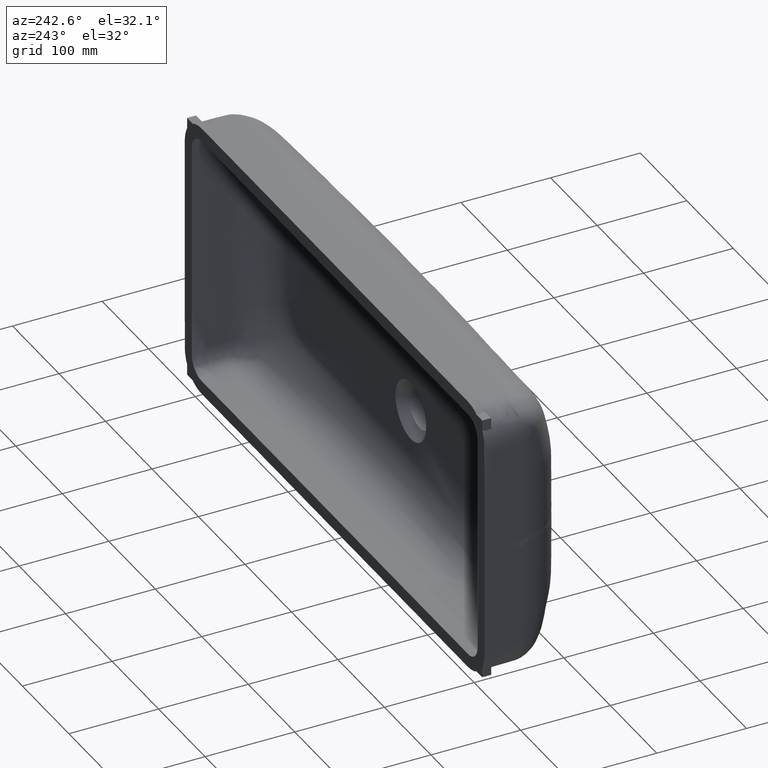
[diagram: clean part render]
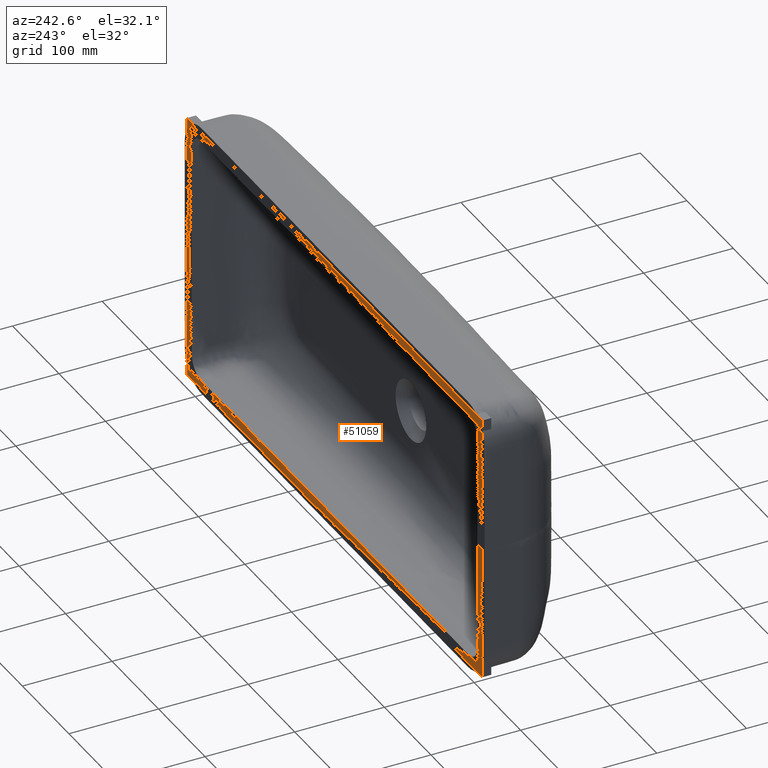
[diagram: same view with one face highlighted and labeled with its STEP entity id]
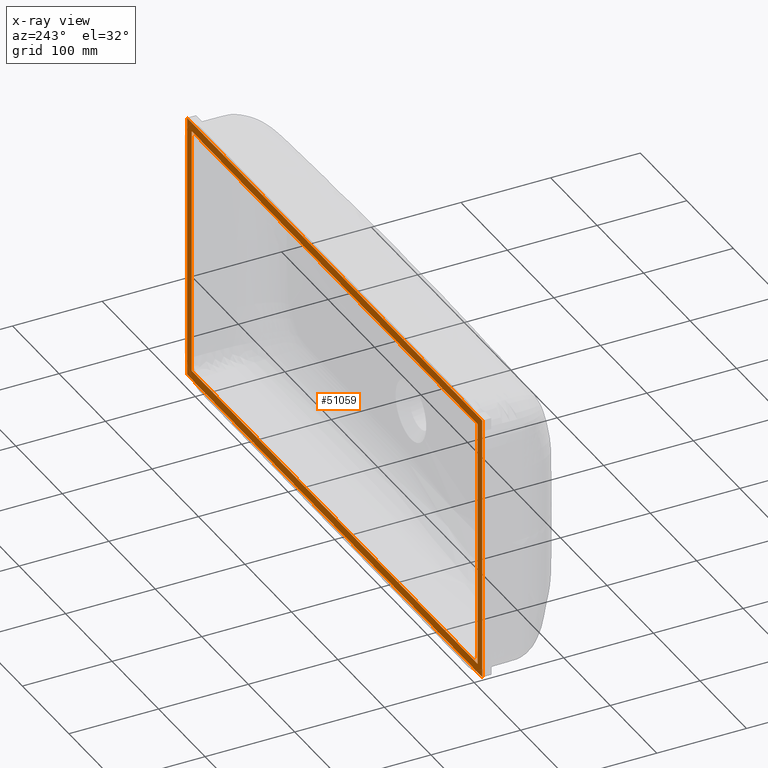
[diagram: x-ray of the same camera — body ghosted, the highlighted face saturated]
A machine part, auxiliary view. The second image highlights one B-rep face of the part: STEP entity #51059.
The next image is the same camera in x-ray: the body ghosted, the highlighted face saturated — about 0% of this face is hidden behind the body in this view.
In plain terms, the highlighted planar face has unit normal (-0, 1, 0).
Its self-contained STEP definition (entity closure, byte-faithful):
#398 = LINE ( 'NONE', #25135, #50908 ) ;
#3076 = VERTEX_POINT ( 'NONE', #196707 ) ;
#5344 = CARTESIAN_POINT ( 'NONE',  ( -307.5000000000000600, 0.0000000000000000000, 140.0000000000001700 ) ) ;
#7349 = CARTESIAN_POINT ( 'NONE',  ( 317.5000000000000000, 0.0000000000000000000, 150.0000000000001700 ) ) ;
#7435 = ORIENTED_EDGE ( 'NONE', *, *, #8950, .F. ) ;
#8950 = EDGE_CURVE ( 'NONE', #128491, #3076, #48462, .T. ) ;
#11040 = EDGE_LOOP ( 'NONE', ( #157813, #135630, #144731, #7435 ) ) ;
#12741 = VECTOR ( 'NONE', #143476, 1000.000000000000000 ) ;
#22819 = VERTEX_POINT ( 'NONE', #111468 ) ;
#24261 = EDGE_CURVE ( 'NONE', #125878, #225122, #28546, .T. ) ;
#25135 = CARTESIAN_POINT ( 'NONE',  ( -317.5000000000001100, 0.0000000000000000000, -149.9999999999999400 ) ) ;
#25694 = ORIENTED_EDGE ( 'NONE', *, *, #199145, .T. ) ;
#28546 = LINE ( 'NONE', #51038, #159301 ) ;
#30230 = CARTESIAN_POINT ( 'NONE',  ( -307.5000000000000600, 0.0000000000000000000, 140.0000000000001700 ) ) ;
#32807 = FACE_BOUND ( 'NONE', #11040, .T. ) ;
#34258 = CARTESIAN_POINT ( 'NONE',  ( -307.5000000000001100, 0.0000000000000000000, -139.9999999999999400 ) ) ;
#42315 = ORIENTED_EDGE ( 'NONE', *, *, #168032, .T. ) ;
#45433 = DIRECTION ( 'NONE',  ( 1.000000000000000000, 0.0000000000000000000, -4.513101726118521800E-017 ) ) ;
#48462 = LINE ( 'NONE', #5344, #153750 ) ;
#50908 = VECTOR ( 'NONE', #184968, 1000.000000000000000 ) ;
#50944 = EDGE_LOOP ( 'NONE', ( #42315, #25694, #67608, #65120 ) ) ;
#51038 = CARTESIAN_POINT ( 'NONE',  ( -317.5000000000001100, 0.0000000000000000000, -149.9999999999999400 ) ) ;
#51059 = ADVANCED_FACE ( 'NONE', ( #32807, #108393 ), #131005, .T. ) ;
#56704 = DIRECTION ( 'NONE',  ( -1.000000000000000000, -0.0000000000000000000, -0.0000000000000000000 ) ) ;
#59922 = DIRECTION ( 'NONE',  ( -1.982541115402064600E-016, -0.0000000000000000000, -1.000000000000000000 ) ) ;
#65120 = ORIENTED_EDGE ( 'NONE', *, *, #24261, .T. ) ;
#65508 = EDGE_CURVE ( 'NONE', #157371, #125878, #208677, .T. ) ;
#67608 = ORIENTED_EDGE ( 'NONE', *, *, #65508, .T. ) ;
#81949 = LINE ( 'NONE', #94690, #189842 ) ;
#84038 = CARTESIAN_POINT ( 'NONE',  ( -307.5000000000001100, 0.0000000000000000000, -139.9999999999999400 ) ) ;
#86683 = CARTESIAN_POINT ( 'NONE',  ( 317.5000000000000000, 0.0000000000000000000, -149.9999999999999400 ) ) ;
#92409 = VERTEX_POINT ( 'NONE', #170040 ) ;
#94690 = CARTESIAN_POINT ( 'NONE',  ( 307.5000000000000000, 0.0000000000000000000, -139.9999999999999400 ) ) ;
#95504 = DIRECTION ( 'NONE',  ( -0.0000000000000000000, 1.000000000000000000, 0.0000000000000000000 ) ) ;
#101794 = DIRECTION ( 'NONE',  ( -1.000000000000000000, -0.0000000000000000000, -0.0000000000000000000 ) ) ;
#103808 = DIRECTION ( 'NONE',  ( 1.000000000000000000, 0.0000000000000000000, -4.370956789862821900E-017 ) ) ;
#107957 = VECTOR ( 'NONE', #101794, 1000.000000000000000 ) ;
#108393 = FACE_OUTER_BOUND ( 'NONE', #50944, .T. ) ;
#111468 = CARTESIAN_POINT ( 'NONE',  ( 307.5000000000000000, 0.0000000000000000000, -139.9999999999999400 ) ) ;
#113252 = CARTESIAN_POINT ( 'NONE',  ( 0.0000000000000000000, 0.0000000000000000000, 0.0000000000000000000 ) ) ;
#114736 = LINE ( 'NONE', #227346, #192114 ) ;
#115169 = LINE ( 'NONE', #210315, #147174 ) ;
#118915 = AXIS2_PLACEMENT_3D ( 'NONE', #113252, #95504, #148793 ) ;
#125878 = VERTEX_POINT ( 'NONE', #189318 ) ;
#128491 = VERTEX_POINT ( 'NONE', #30230 ) ;
#131005 = PLANE ( 'NONE',  #118915 ) ;
#132125 = EDGE_CURVE ( 'NONE', #22819, #204731, #155977, .T. ) ;
#135630 = ORIENTED_EDGE ( 'NONE', *, *, #132125, .F. ) ;
#143476 = DIRECTION ( 'NONE',  ( -0.0000000000000000000, -0.0000000000000000000, -1.000000000000000000 ) ) ;
#144731 = ORIENTED_EDGE ( 'NONE', *, *, #151108, .F. ) ;
#146938 = CARTESIAN_POINT ( 'NONE',  ( -317.5000000000001100, 0.0000000000000000000, -149.9999999999999400 ) ) ;
#147174 = VECTOR ( 'NONE', #175587, 1000.000000000000000 ) ;
#148793 = DIRECTION ( 'NONE',  ( 0.0000000000000000000, -0.0000000000000000000, 1.000000000000000000 ) ) ;
#151108 = EDGE_CURVE ( 'NONE', #3076, #22819, #81949, .T. ) ;
#153750 = VECTOR ( 'NONE', #45433, 1000.000000000000000 ) ;
#155977 = LINE ( 'NONE', #84038, #107957 ) ;
#157371 = VERTEX_POINT ( 'NONE', #7349 ) ;
#157813 = ORIENTED_EDGE ( 'NONE', *, *, #206883, .F. ) ;
#159301 = VECTOR ( 'NONE', #56704, 1000.000000000000000 ) ;
#168032 = EDGE_CURVE ( 'NONE', #225122, #92409, #398, .T. ) ;
#170040 = CARTESIAN_POINT ( 'NONE',  ( -317.5000000000000600, 0.0000000000000000000, 150.0000000000002000 ) ) ;
#175587 = DIRECTION ( 'NONE',  ( 1.982541115402064400E-016, 0.0000000000000000000, 1.000000000000000000 ) ) ;
#184968 = DIRECTION ( 'NONE',  ( 1.850371707708593300E-016, 0.0000000000000000000, 1.000000000000000000 ) ) ;
#189318 = CARTESIAN_POINT ( 'NONE',  ( 317.5000000000000000, 0.0000000000000000000, -149.9999999999999400 ) ) ;
#189842 = VECTOR ( 'NONE', #59922, 1000.000000000000000 ) ;
#192114 = VECTOR ( 'NONE', #103808, 1000.000000000000000 ) ;
#196707 = CARTESIAN_POINT ( 'NONE',  ( 307.5000000000000600, 0.0000000000000000000, 140.0000000000001400 ) ) ;
#199145 = EDGE_CURVE ( 'NONE', #92409, #157371, #114736, .T. ) ;
#204731 = VERTEX_POINT ( 'NONE', #34258 ) ;
#206883 = EDGE_CURVE ( 'NONE', #204731, #128491, #115169, .T. ) ;
#208677 = LINE ( 'NONE', #86683, #12741 ) ;
#210315 = CARTESIAN_POINT ( 'NONE',  ( -307.5000000000001100, 0.0000000000000000000, -139.9999999999999400 ) ) ;
#225122 = VERTEX_POINT ( 'NONE', #146938 ) ;
#227346 = CARTESIAN_POINT ( 'NONE',  ( -317.5000000000000600, 0.0000000000000000000, 150.0000000000002000 ) ) ;